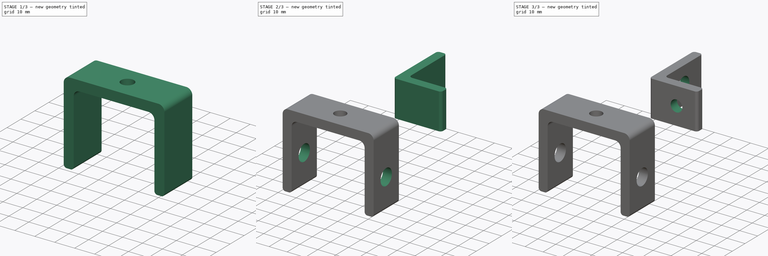
[diagram: build sequence overview — one tinted view per stage of 3, left to right]
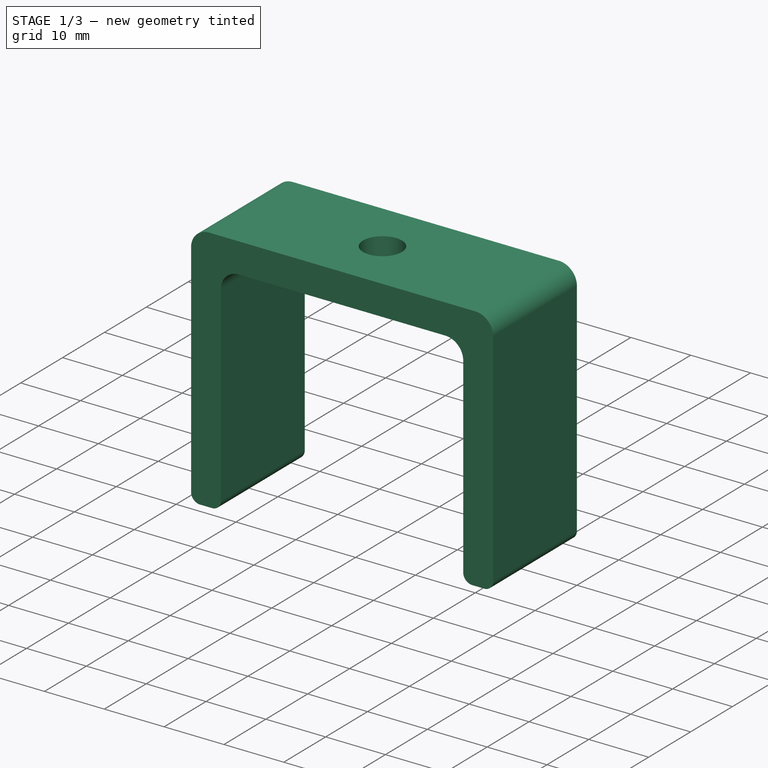
[diagram: stage 1 of 3 — iso view after this stage's code; geometry added in this stage tinted green]
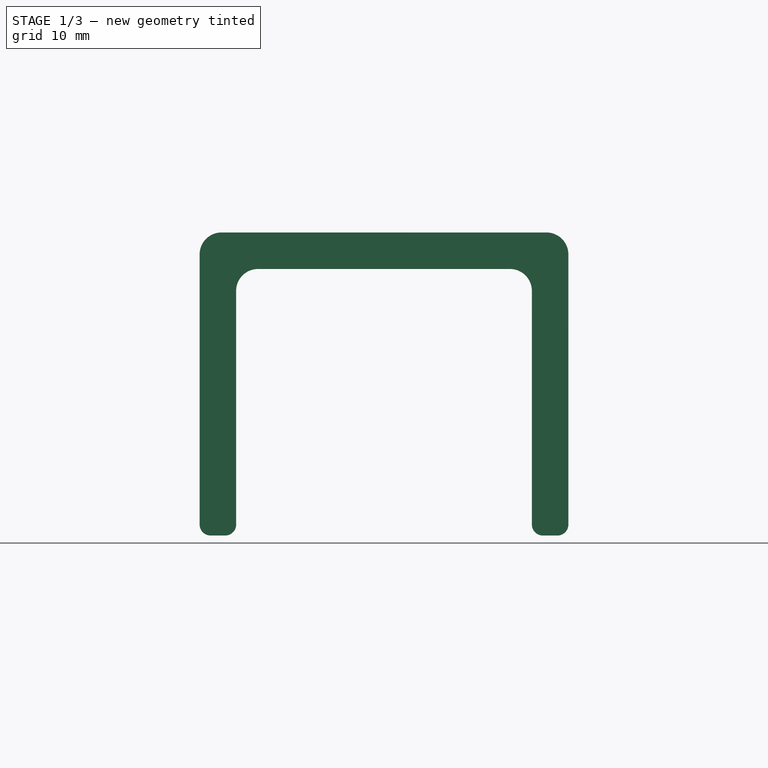
[diagram: stage 1 of 3 — front view after this stage's code; geometry added in this stage tinted green]
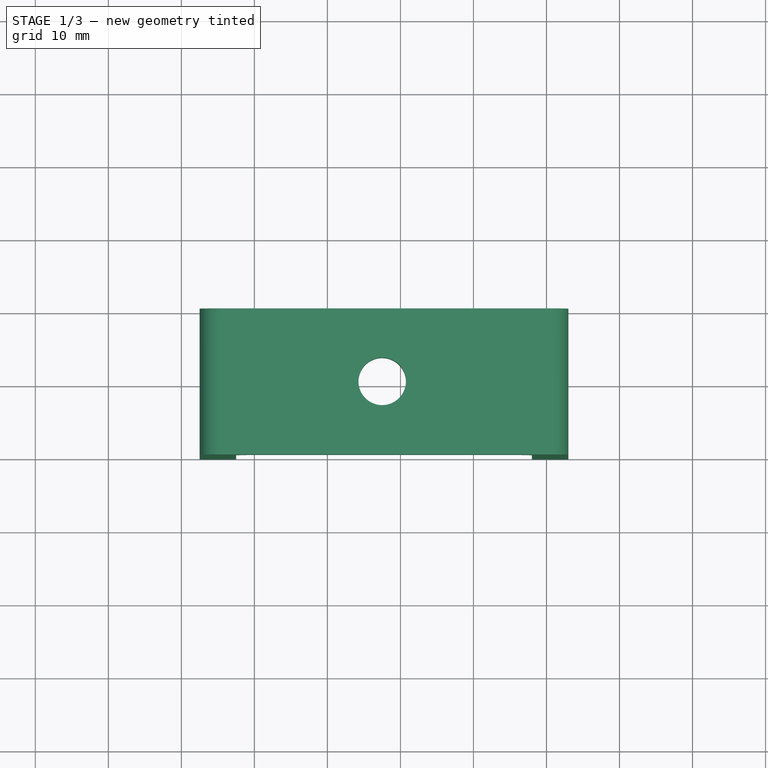
[diagram: stage 1 of 3 — top view after this stage's code; geometry added in this stage tinted green]
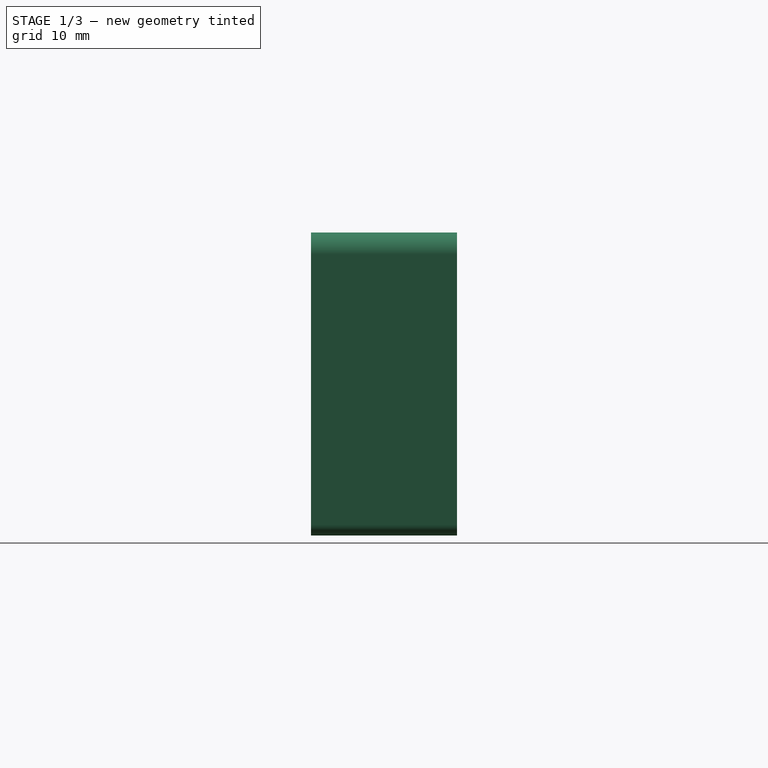
[diagram: stage 1 of 3 — right view after this stage's code; geometry added in this stage tinted green]
FCSTD DOCUMENT  (FreeCAD 0.19R)
Label: extrusion_supports
License: All rights reserved
LicenseURL: http://en.wikipedia.org/wiki/All_rights_reserved
objects: Sketcher::SketchObject×6, PartDesign::Pocket×4, PartDesign::Pad×2, PartDesign::Body×2
note: 20 computed .brp shape members not serialized (recipe doc carries the construction recipe); baked Part::Feature solids carry a one-line shape summary decoded from their .brp

FEATURE [PartDesign::Body] Body  label="optical_table_support"
  Group = -> [Sketch,Pad,Sketch001,Pocket,Sketch002,Pocket001]
  Origin = -> Origin
  Tip = -> Pocket001
FEATURE [Sketcher::SketchObject] Sketch003
  FullyConstrained = true
  MapMode = 5
  Placement = pos=(0,0,0) rot=(1,0,0;1.5708rad)
  Support = -> [XZ_Plane001]
  sketch-geometry (17):
    g0: LineSegment StartX=-44.5 StartY=0 StartZ=0 EndX=0 EndY=0 EndZ=0
    g1: LineSegment StartX=-47.5 StartY=-3 StartZ=0 EndX=-47.5 EndY=-40 EndZ=0
    g2: LineSegment StartX=-46 StartY=-41.5 StartZ=0 EndX=-44 EndY=-41.5 EndZ=0
    g3: LineSegment StartX=-42.5 StartY=-40 StartZ=0 EndX=-42.5 EndY=-8 EndZ=0
    g4: LineSegment StartX=-39.5 StartY=-5 StartZ=0 EndX=-5 EndY=-5 EndZ=0
    g5: LineSegment StartX=-2 StartY=-8 StartZ=0 EndX=-2 EndY=-40 EndZ=0
    g6: LineSegment StartX=-0.5 StartY=-41.5 StartZ=0 EndX=1.5 EndY=-41.5 EndZ=0
    g7: LineSegment StartX=3 StartY=-40 StartZ=0 EndX=3 EndY=-3 EndZ=0
    g8: ArcOfCircle CenterX=-44.5 CenterY=-3 CenterZ=0 NormalX=0 NormalY=0 NormalZ=1 AngleXU=0 Radius=3 StartAngle=1.5708 EndAngle=3.14159
    g9: ArcOfCircle CenterX=-39.5 CenterY=-8 CenterZ=0 NormalX=0 NormalY=0 NormalZ=1 AngleXU=0 Radius=3 StartAngle=1.5708 EndAngle=3.14159
    g10: ArcOfCircle CenterX=-5 CenterY=-8 CenterZ=0 NormalX=0 NormalY=0 NormalZ=1 AngleXU=0 Radius=3 StartAngle=0 EndAngle=1.5708
    g11: ArcOfCircle CenterX=-4e-16 CenterY=-3 CenterZ=0 NormalX=0 NormalY=0 NormalZ=1 AngleXU=0 Radius=3 StartAngle=0 EndAngle=1.5708
    g12: ArcOfCircle CenterX=-0.5 CenterY=-40 CenterZ=0 NormalX=0 NormalY=0 NormalZ=1 AngleXU=0 Radius=1.5 StartAngle=3.14159 EndAngle=4.71239
    g13: ArcOfCircle CenterX=1.5 CenterY=-40 CenterZ=0 NormalX=0 NormalY=0 NormalZ=1 AngleXU=0 Radius=1.5 StartAngle=4.71239 EndAngle=6.28319
    g14: ArcOfCircle CenterX=-44 CenterY=-40 CenterZ=0 NormalX=0 NormalY=0 NormalZ=1 AngleXU=0 Radius=1.5 StartAngle=4.71239 EndAngle=6.28319
    g15: ArcOfCircle CenterX=-46 CenterY=-40 CenterZ=0 NormalX=0 NormalY=0 NormalZ=1 AngleXU=0 Radius=1.5 StartAngle=3.14159 EndAngle=4.71239
    g16: LineSegment StartX=-42.5 StartY=-40 StartZ=0 EndX=-2 EndY=-40 EndZ=0
  constraints (41):
    c: Vertical(g1)
    c: Horizontal(g2)
    c: Vertical(g3)
    c: Horizontal(g4)
    c: Vertical(g5)
    c: Horizontal(g6)
    c: Vertical(g7)
    c: Tangent(g1,g8) = -1.5708
    c: Tangent(g0,g8) = 1.5708
    c: Tangent(g3,g9) = 1.5708
    c: Tangent(g4,g9) = 1.5708
    c: Tangent(g4,g10) = 1.5708
    c: Tangent(g5,g10) = 1.5708
    c: Tangent(g0,g11) = 1.5708
    c: Tangent(g7,g11) = -1.5708
    c: Tangent(g6,g12) = -1.5708
    c: Tangent(g5,g12) = -1.5708
    c: Tangent(g6,g13) = -1.5708
    c: Tangent(g7,g13) = -1.5708
    c: Tangent(g2,g14) = -1.5708
    c: Tangent(g3,g14) = -1.5708
    c: Tangent(g2,g15) = -1.5708
    c: Tangent(g1,g15) = -1.5708
    c: Equal(g13,g12)
    c: Equal(g12,g14)
    c: Equal(g14,g15)
    c: Equal(g11,g8)
    c: Equal(g8,g9)
    c: Equal(g9,g10)
    c: Coincident(g16,g3)
    c: Coincident(g16,g5)
    c: Horizontal(g16)
    c: DistanceX(g5,g7) = 5
    c: DistanceX(g1,g3) = 5
    c: Horizontal(g0)
    c: DistanceY(g4,g0) = 5
    c: DistanceY(g3,g4) = 35
    c: DistanceX(g3,g5) = 40.5
    c: Coincident(g-1,g0)
    c: Radius(g11) = 3
    c: Radius(g13) = 1.5
FEATURE [PartDesign::Pad] Pad001
  Direction = (1,1,1)
  Length = 20
  Length2 = 100
  Placement = pos=(0,0,0) rot=(1,0,0;1.5708rad)
  Profile = -> Sketch003
  Type = 0
FEATURE [Sketcher::SketchObject] Sketch004
  FullyConstrained = true
  MapMode = 5
  Placement = pos=(0,0,0) rot=(0,0,1;3.14159rad)
  Support = -> [Pad001]
  sketch-geometry (1):
    g0: Circle CenterX=22.5 CenterY=10 CenterZ=0 NormalX=0 NormalY=0 NormalZ=1 AngleXU=0 Radius=3.25
  constraints (3):
    c: Diameter(g0) = 6.5
    c: DistanceX(g-1,g0) = 22.5
    c: DistanceY(g-1,g0) = 10
FEATURE [PartDesign::Pocket] Pocket002
  BaseFeature = -> Pad001
  Length = 5
  Length2 = 100
  Placement = pos=(0,0,0) rot=(1,0,0;1.5708rad)
  Profile = -> Sketch004
  Type = 0
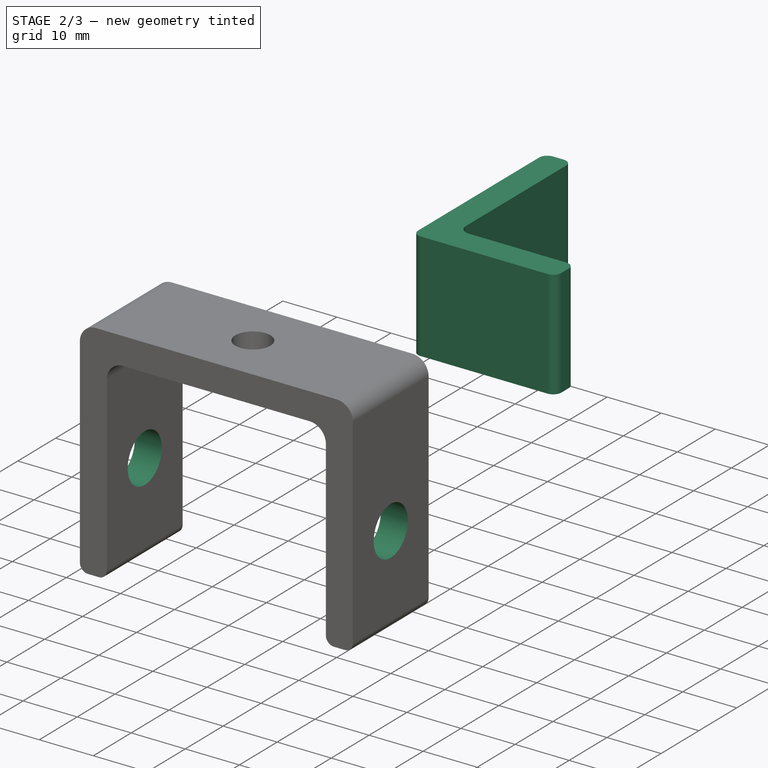
[diagram: stage 2 of 3 — iso view after this stage's code; geometry added in this stage tinted green]
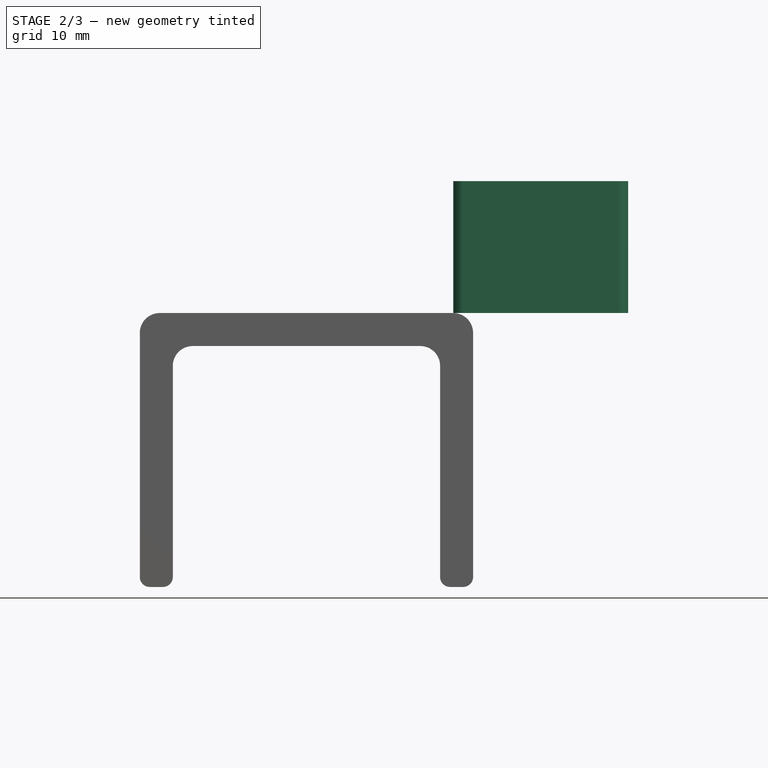
[diagram: stage 2 of 3 — front view after this stage's code; geometry added in this stage tinted green]
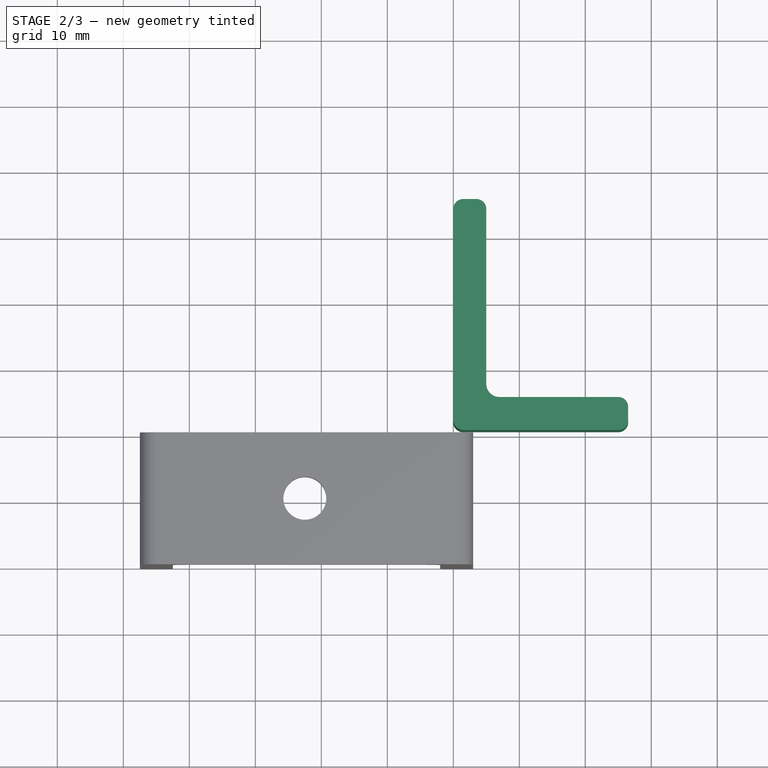
[diagram: stage 2 of 3 — top view after this stage's code; geometry added in this stage tinted green]
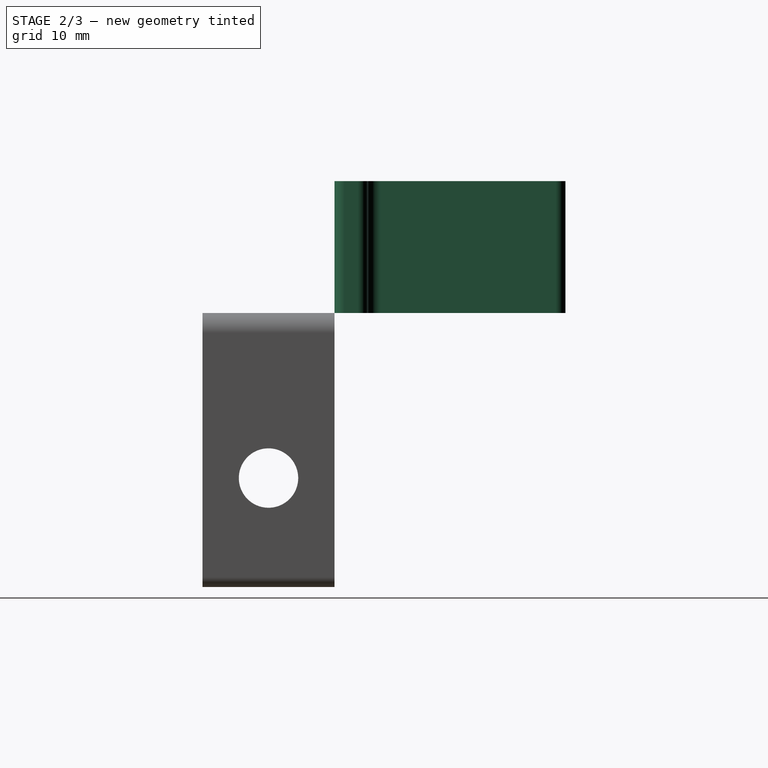
[diagram: stage 2 of 3 — right view after this stage's code; geometry added in this stage tinted green]
FEATURE [Sketcher::SketchObject] Sketch
  FullyConstrained = true
  MapMode = 5
  Support = -> [XY_Plane]
  sketch-geometry (12):
    g0: LineSegment StartX=0 StartY=33.5 StartZ=0 EndX=0 EndY=1.5 EndZ=0
    g1: LineSegment StartX=1.5 StartY=0 StartZ=0 EndX=25 EndY=0 EndZ=0
    g2: LineSegment StartX=26.5 StartY=1.5 StartZ=0 EndX=26.5 EndY=3.5 EndZ=0
    g3: LineSegment StartX=25 StartY=5 StartZ=0 EndX=7 EndY=5 EndZ=0
    g4: LineSegment StartX=5 StartY=7 StartZ=0 EndX=5 EndY=33.5 EndZ=0
    g5: LineSegment StartX=3.5 StartY=35 StartZ=0 EndX=1.5 EndY=35 EndZ=0
    g6: ArcOfCircle CenterX=1.5 CenterY=33.5 CenterZ=0 NormalX=0 NormalY=0 NormalZ=1 AngleXU=0 Radius=1.5 StartAngle=1.5708 EndAngle=3.14159
    g7: ArcOfCircle CenterX=3.5 CenterY=33.5 CenterZ=0 NormalX=0 NormalY=0 NormalZ=1 AngleXU=0 Radius=1.5 StartAngle=-9e-16 EndAngle=1.5708
    g8: ArcOfCircle CenterX=7 CenterY=7 CenterZ=0 NormalX=0 NormalY=0 NormalZ=1 AngleXU=0 Radius=2 StartAngle=3.14159 EndAngle=4.71239
    g9: ArcOfCircle CenterX=25 CenterY=1.5 CenterZ=0 NormalX=0 NormalY=0 NormalZ=1 AngleXU=0 Radius=1.5 StartAngle=4.71239 EndAngle=6.28319
    g10: ArcOfCircle CenterX=25 CenterY=3.5 CenterZ=0 NormalX=0 NormalY=0 NormalZ=1 AngleXU=0 Radius=1.5 StartAngle=0 EndAngle=1.5708
    g11: ArcOfCircle CenterX=1.5 CenterY=1.5 CenterZ=0 NormalX=0 NormalY=0 NormalZ=1 AngleXU=0 Radius=1.5 StartAngle=3.14159 EndAngle=4.71239
  constraints (30):
    c: Vertical(g2)
    c: Horizontal(g3)
    c: Vertical(g4)
    c: Horizontal(g5)
    c: Tangent(g0,g6) = -1.5708
    c: Tangent(g5,g6) = -1.5708
    c: Tangent(g5,g7) = -1.5708
    c: Tangent(g4,g7) = -1.5708
    c: Tangent(g3,g8) = 1.5708
    c: Tangent(g4,g8) = 1.5708
    c: Tangent(g1,g9) = -1.5708
    c: Tangent(g2,g9) = -1.5708
    c: Tangent(g2,g10) = -1.5708
    c: Tangent(g3,g10) = -1.5708
    c: Equal(g6,g7)
    c: Equal(g7,g10)
    c: Equal(g10,g9)
    c: Vertical(g0)
    c: Horizontal(g1)
    c: DistanceX(g0,g4) = 5
    c: DistanceY(g1,g3) = 5
    c: Radius(g7) = 1.5
    c: Radius(g8) = 2
    c: Tangent(g1,g11) = -1.5708
    c: Tangent(g0,g11) = -1.5708
    c: Radius(g11) = 1.5
    c: DistanceY(g1,g5) = 35
    c: DistanceX(g0,g1) = 25
    c: PointOnObject(g1,g-1)
    c: PointOnObject(g0,g-2)
FEATURE [PartDesign::Pad] Pad
  Direction = (1,1,1)
  Length = 20
  Length2 = 100
  Profile = -> Sketch
  Type = 0
FEATURE [Sketcher::SketchObject] Sketch005
  FullyConstrained = true
  MapMode = 5
  Placement = pos=(3,0,0) rot=(0.707107,0,0.707107;3.14159rad)
  Support = -> [Pocket002]
  sketch-geometry (1):
    g0: Circle CenterX=-25 CenterY=10 CenterZ=0 NormalX=0 NormalY=0 NormalZ=1 AngleXU=0 Radius=4.5
  constraints (3):
    c: Diameter(g0) = 9
    c: DistanceX(g0,g-1) = 25
    c: DistanceY(g-1,g0) = 10
FEATURE [PartDesign::Pocket] Pocket003
  BaseFeature = -> Pocket002
  Length = 60
  Length2 = 100
  Placement = pos=(0,0,0) rot=(1,0,0;1.5708rad)
  Profile = -> Sketch005
  Type = 0
FEATURE [PartDesign::Body] Body001  label="lens_support"
  Group = -> [Sketch003,Pad001,Sketch004,Pocket002,Sketch005,Pocket003]
  Origin = -> Origin001
  Tip = -> Pocket003
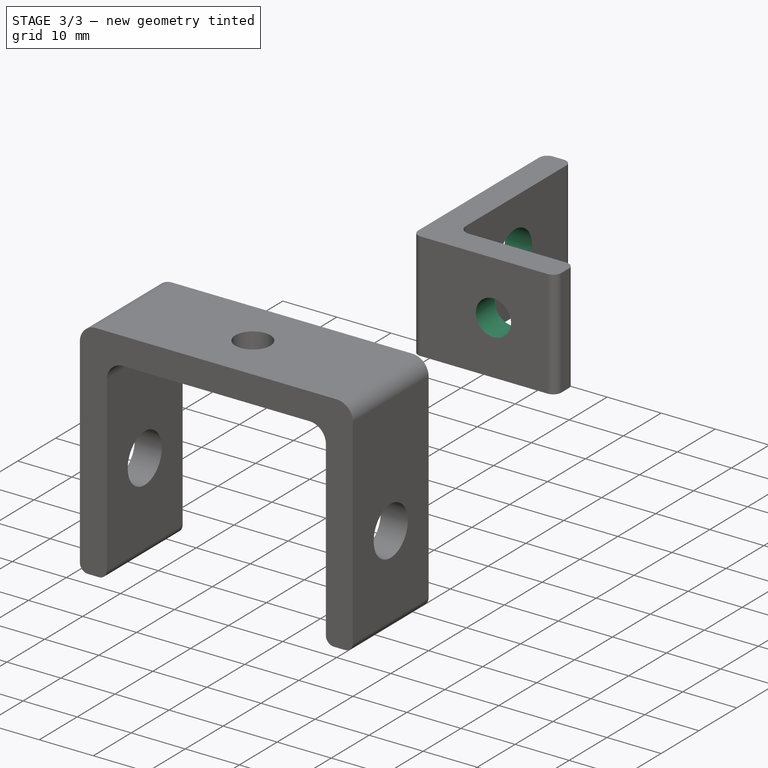
[diagram: stage 3 of 3 — iso view after this stage's code; geometry added in this stage tinted green]
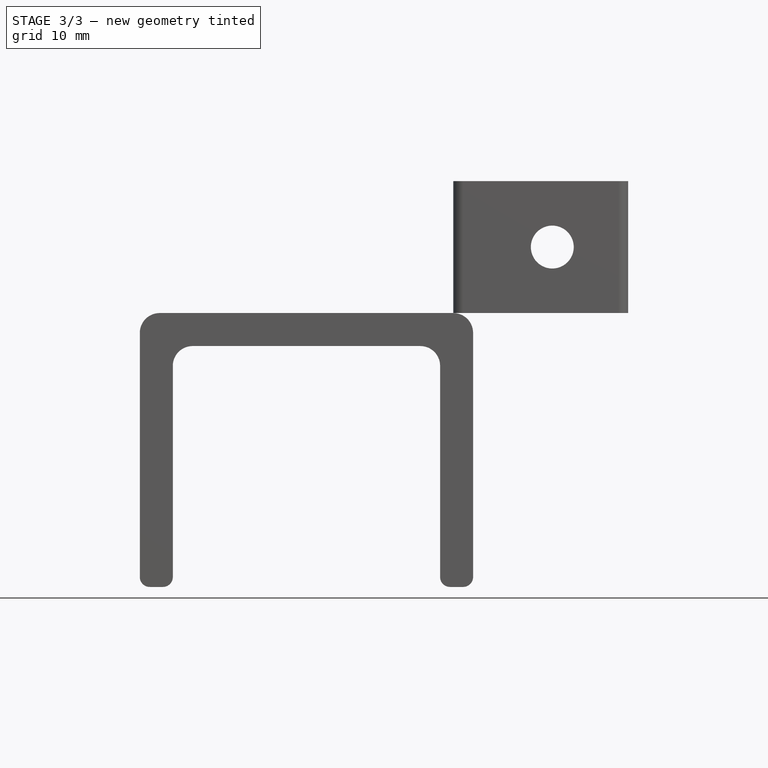
[diagram: stage 3 of 3 — front view after this stage's code; geometry added in this stage tinted green]
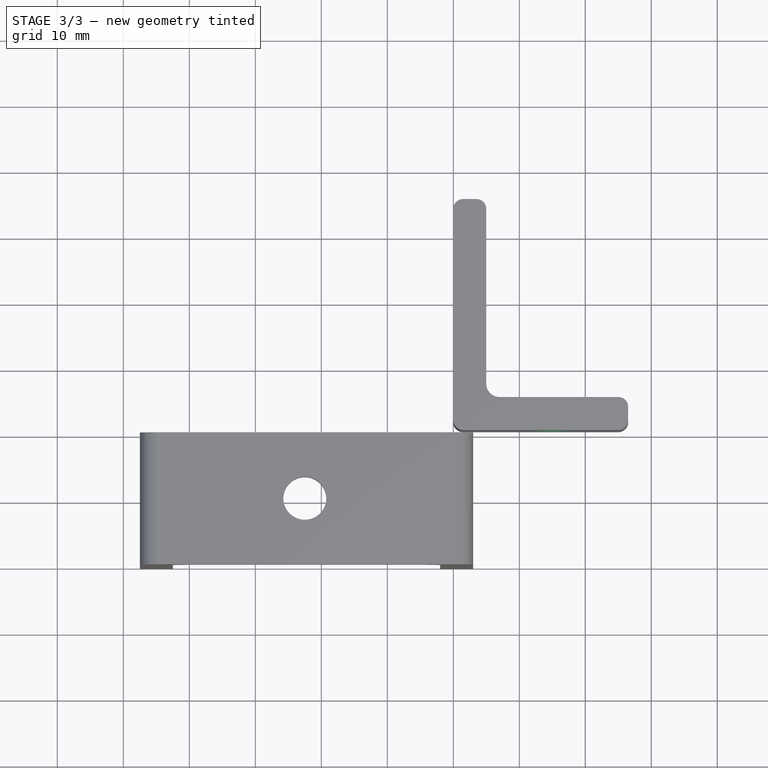
[diagram: stage 3 of 3 — top view after this stage's code; geometry added in this stage tinted green]
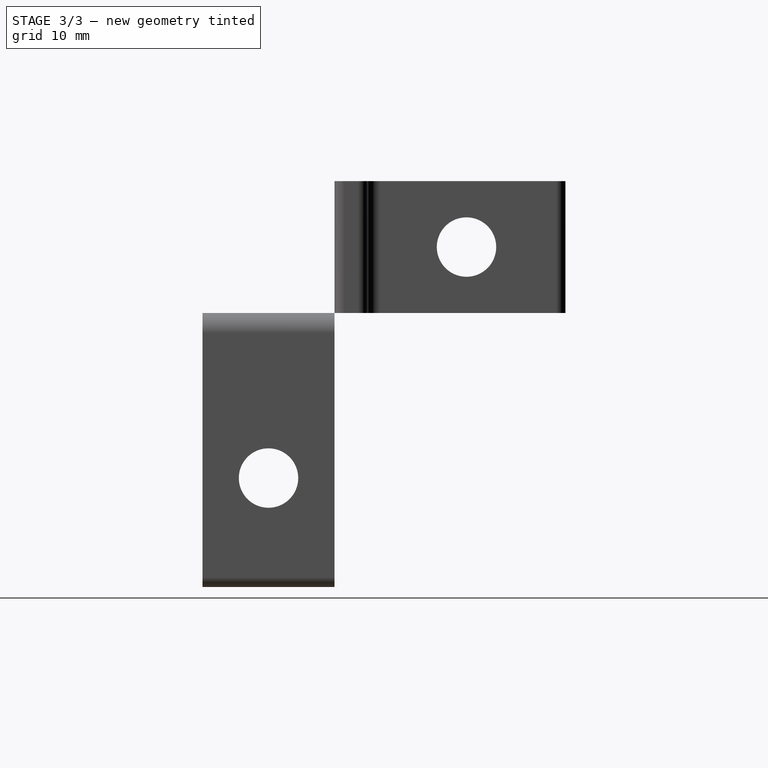
[diagram: stage 3 of 3 — right view after this stage's code; geometry added in this stage tinted green]
FEATURE [Sketcher::SketchObject] Sketch001
  FullyConstrained = true
  MapMode = 5
  Placement = pos=(5,0,0) rot=(0.57735,0.57735,0.57735;2.0944rad)
  Support = -> [Pad]
  sketch-geometry (1):
    g0: Circle CenterX=20 CenterY=10 CenterZ=0 NormalX=0 NormalY=0 NormalZ=1 AngleXU=0 Radius=4.5
  constraints (3):
    c: Diameter(g0) = 9
    c: DistanceX(g-1,g0) = 20
    c: DistanceY(g-1,g0) = 10
FEATURE [PartDesign::Pocket] Pocket
  BaseFeature = -> Pad
  Length = 5
  Length2 = 100
  Profile = -> Sketch001
  Type = 0
FEATURE [Sketcher::SketchObject] Sketch002
  FullyConstrained = true
  MapMode = 5
  Placement = pos=(0,5,0) rot=(0,0.707107,0.707107;3.14159rad)
  Support = -> [Pocket]
  sketch-geometry (1):
    g0: Circle CenterX=-15 CenterY=10 CenterZ=0 NormalX=0 NormalY=0 NormalZ=1 AngleXU=0 Radius=3.25
  constraints (3):
    c: Diameter(g0) = 6.5
    c: DistanceX(g0,g-1) = 15
    c: DistanceY(g-1,g0) = 10
FEATURE [PartDesign::Pocket] Pocket001
  BaseFeature = -> Pocket
  Length = 5
  Length2 = 100
  Profile = -> Sketch002
  Type = 0
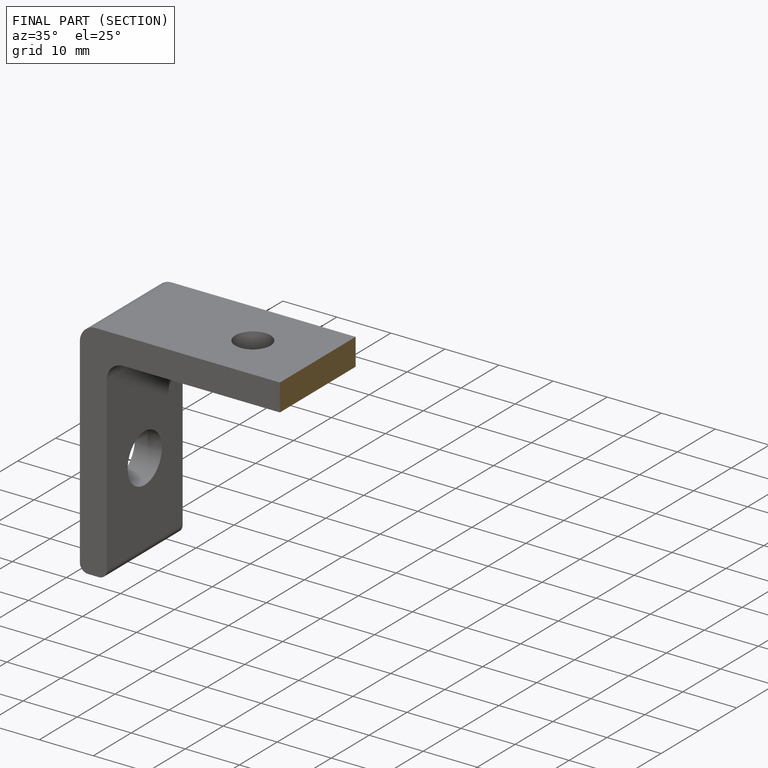
[diagram: finished part — half-section view (interior)]
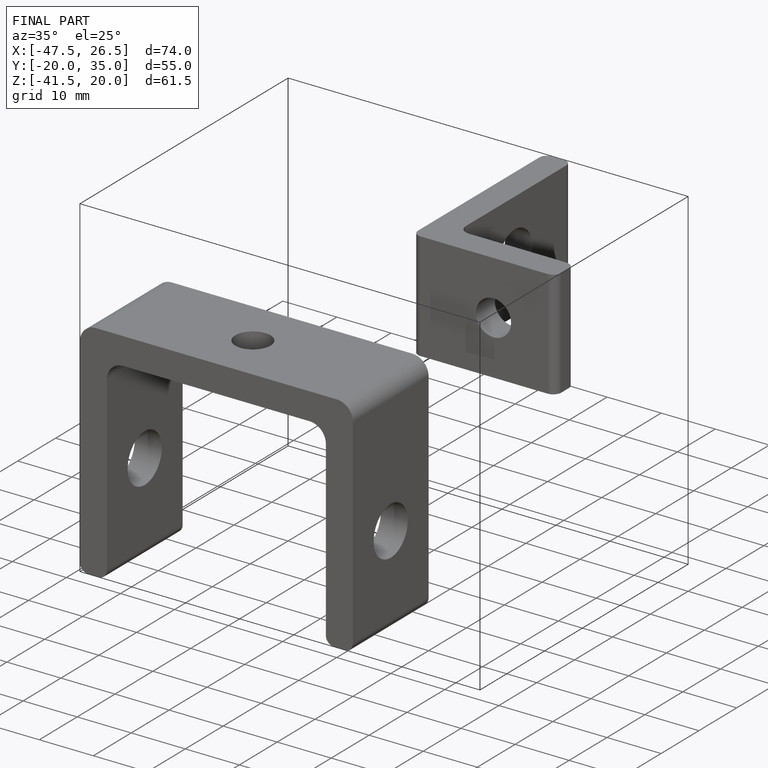
[diagram: finished part — iso view with bounding-box wireframe]
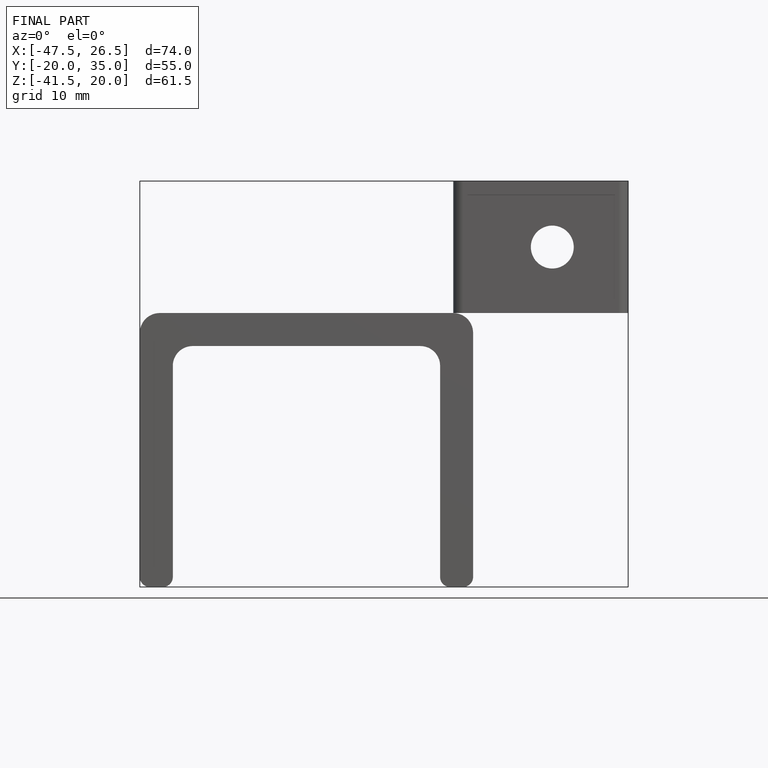
[diagram: finished part — front view with bounding-box wireframe]
